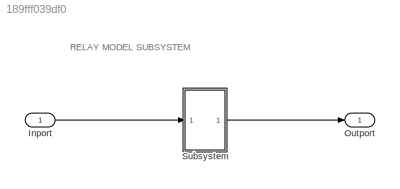
MODEL slx_189fff039df0
KIND model
CONFIG AbsTol = auto
CONFIG EnableMultiTasking = off
CONFIG FixedStep = 0.1
CONFIG MaxStep = auto
CONFIG MinStep = auto
CONFIG RelTol = 1e-3
CONFIG SampleTimeConstraint = Unconstrained
CONFIG SolverName = FixedStepDiscrete
CONFIG StartTime = 0.0
CONFIG StopTime = 10.0
BLOCK [Inport] Inport
BLOCK [Outport] Outport
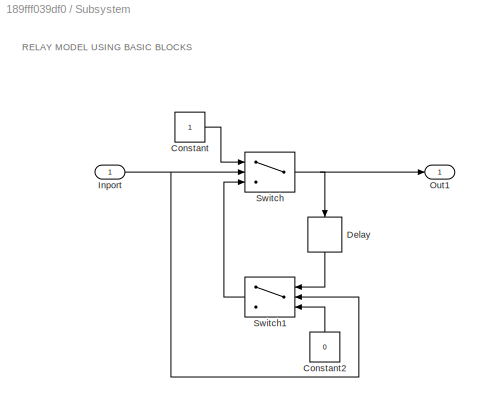
BLOCK [SubSystem] Subsystem
  TreatAsAtomicUnit = on
BLOCK [Constant] Subsystem/Constant
BLOCK [Constant] Subsystem/Constant2
  NameLocation = right
  Value = 0
BLOCK [Delay] Subsystem/Delay
  InputPortMap = u0
  NameLocation = left
BLOCK [Inport] Subsystem/Inport
BLOCK [Outport] Subsystem/Out1
BLOCK [Switch] Subsystem/Switch
  InputSameDT = off
  SaturateOnIntegerOverflow = off
  Threshold = 5
BLOCK [Switch] Subsystem/Switch1
  Criteria = u2 > Threshold
  InputSameDT = off
  NameLocation = top
  SaturateOnIntegerOverflow = off
  Threshold = -5
ANNOTATION (root): RELAY MODEL SUBSYSTEM
ANNOTATION Subsystem: RELAY MODEL USING BASIC BLOCKS
LINE Inport:1 -> Subsystem:1
LINE Subsystem/Constant2:1 -> Subsystem/Switch1:3
LINE Subsystem/Constant:1 -> Subsystem/Switch:1
LINE Subsystem/Delay:1 -> Subsystem/Switch1:1
NET Subsystem/Inport:1 -> Subsystem/Switch1:2, Subsystem/Switch:2
LINE Subsystem/Switch1:1 -> Subsystem/Switch:3
NET Subsystem/Switch:1 -> Subsystem/Delay:1, Subsystem/Out1:1
LINE Subsystem:1 -> Outport:1
note: NET lines group one-source signal fan-out (src -> all destinations, sorted); 1:1 wires keep LINE
